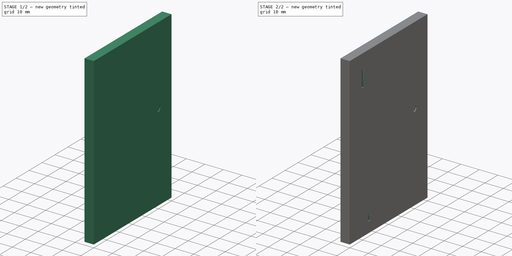
[diagram: build sequence overview — one tinted view per stage of 2, left to right]
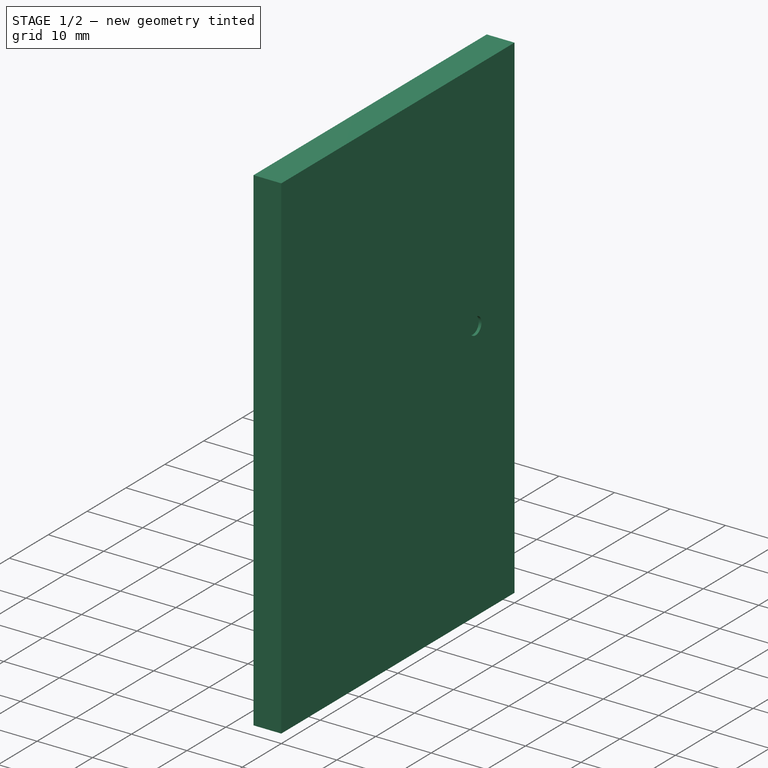
[diagram: stage 1 of 2 — iso view after this stage's code; geometry added in this stage tinted green]
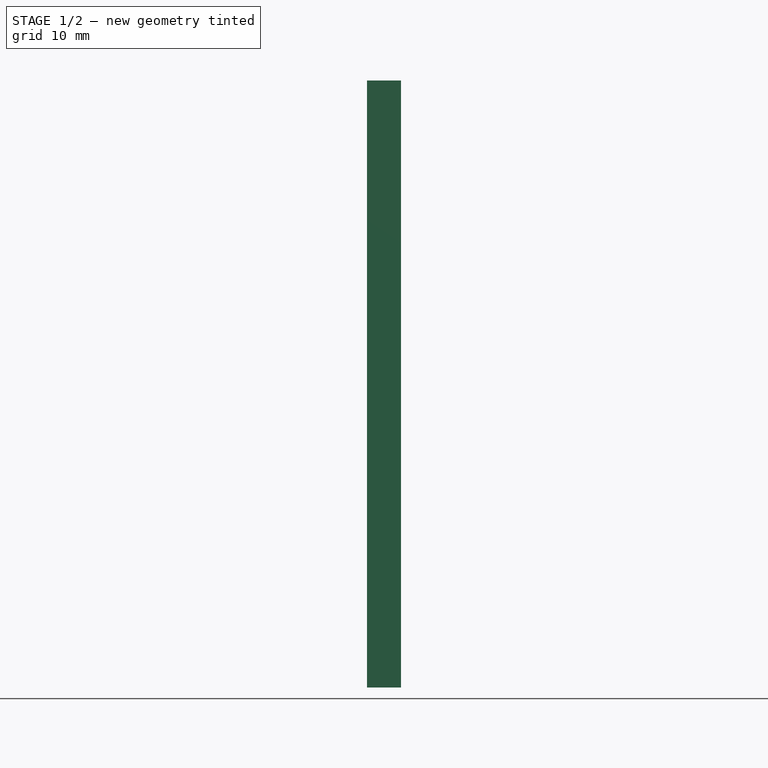
[diagram: stage 1 of 2 — front view after this stage's code; geometry added in this stage tinted green]
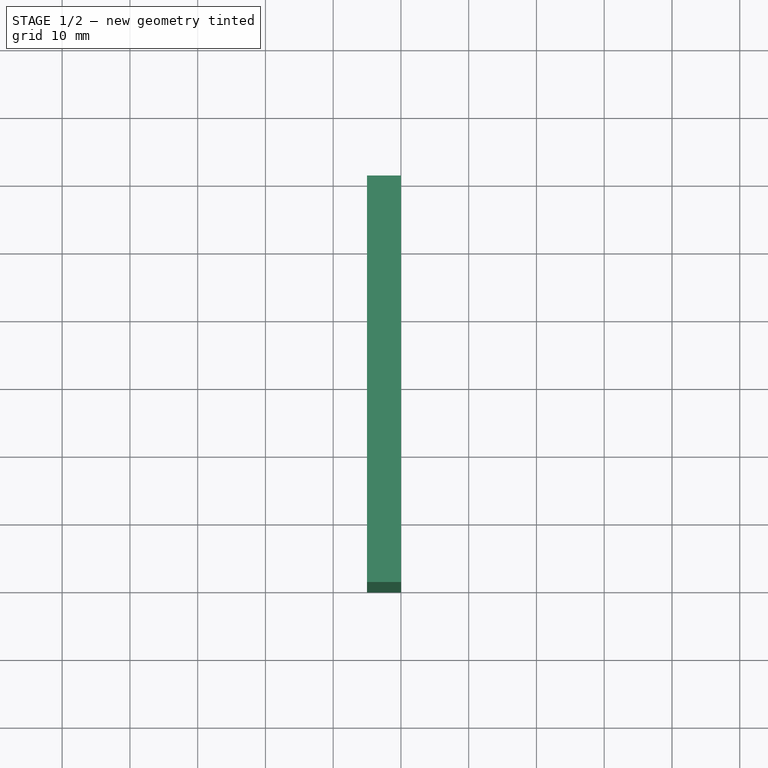
[diagram: stage 1 of 2 — top view after this stage's code; geometry added in this stage tinted green]
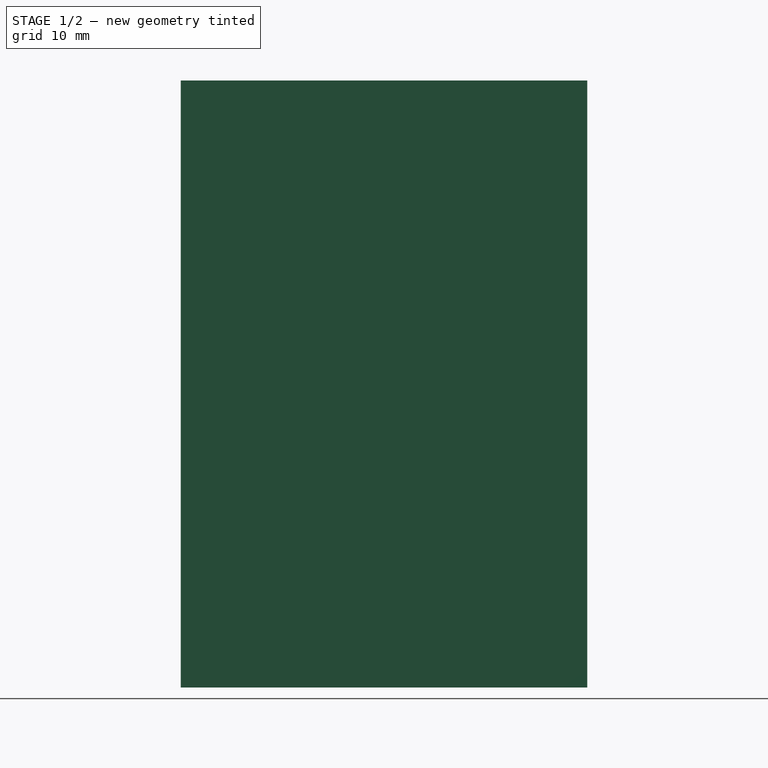
[diagram: stage 1 of 2 — right view after this stage's code; geometry added in this stage tinted green]
FCSTD DOCUMENT  (FreeCAD 0.20R29177 (Git))
Label: mount_plate
License: All rights reserved
LicenseURL: http://en.wikipedia.org/wiki/All_rights_reserved
objects: Sketcher::SketchObject×4, PartDesign::Pocket×3, Spreadsheet::Sheet×1, PartDesign::Pad×1, PartDesign::Body×1
note: 13 computed .brp shape members not serialized (recipe doc carries the construction recipe); baked Part::Feature solids carry a one-line shape summary decoded from their .brp

FEATURE [Spreadsheet::Sheet] Spreadsheet
  cells = A2=Design Parameters; A3=RefLength; B3(RefLength)==1mm; A4=SmallArmArcRadius; B4(SmallArmArcRadius)==30 * RefLength; A5=LargeArmArcRadius; B5(LargeArmArcRadius)==35 * RefLength; A6=WidthMargin; B6(WidthMargin)==0.5 * SmallArmArcRadius; A7=HeightMargin; B7(HeightMargin)==3 * Mu1AdjustedLength; A8=Width; B8(Width)==SmallArmArcRadius + 2 * WidthMargin; A9=Height; B9(Height)==2 * SmallArmArcRadius + 2 * HeightMargin; A10=Thickness; B10(Thickness)==5 * RefLength; A12=ArmBasePadLength; B12(ArmBasePadLength)==0.5 * RefLength; A14=Mu1AxisToBallCenter; B14(Mu1AxisToBallCenter)==5.25 * RefLength; A15=Mu1Angle; B15(Mu1Angle)==20deg; A16=Mu1AdjustedLength; B16(Mu1AdjustedLength)==Mu1AxisToBallCenter * cos(Mu1Angle); A18=SlaArmTipOffsetX; B18(SlaArmTipOffsetX)==5 * RefLength; A19=SlaArmBaseOffsetX; B19(SlaArmBaseOffsetX)==0.5 * SmallArmArcRadius + SlaArmTipOffsetX; A20=SlaArmBaseOffsetY; B20(SlaArmBaseOffsetY)==0.5 * Height + 0.5 * Mu1AdjustedLength; A21=SlaBaseDiameter; B21(SlaBaseDiameter)==3 * RefLength; A22=SlaBasePocketMargin; B22(SlaBasePocketMargin)==0.02 * RefLength; A23=SlaBasePocketDiameter; B23(SlaBasePocketDiameter)==SlaBaseDiameter + 2 * SlaBasePocketMargin; A24=SlaBasePocketDepth; B24(SlaBasePocketDepth)==ArmBasePadLength; A26=ScuArmTipOffsetX; B26(ScuArmTipOffsetX)==5 * RefLength; A27=ScuArmBaseOffsetX; B27(ScuArmBaseOffsetX)==0.5 * SmallArmArcRadius + ScuArmTipOffsetX; A28=ScuArmBaseOffsetY; B28(ScuArmBaseOffsetY)==0.5 * Height + SmallArmArcRadius + 0.5 * Mu1AdjustedLength; A29=ScuBaseHeight; B29(ScuBaseHeight)==1.5 * RefLength; A30=ScuBaseWidth; B30(ScuBaseWidth)==3 * RefLength; A31=ScuBaseWidthMargin; B31(ScuBaseWidthMargin)==0.02 * RefLength; A32=ScuBasePocketWidth; B32(ScuBasePocketWidth)==ScuBaseHeight + 2 * ScuBaseWidthMargin; A33=ScuBasePocketLength; B33(ScuBasePocketLength)==3 * ScuBaseWidth; A34=ScuBasePocketDepth; B34(ScuBasePocketDepth)==ArmBasePadLength; A36=PwpArmBaseOffsetX; B36(PwpArmBaseOffsetX)==0.5 * SmallArmArcRadius; A37=PwpArmBaseOffsetY; B37(PwpArmBaseOffsetY)==0.5 * Height - LargeArmArcRadius - 0.5 * Mu1AdjustedLength; A38=PwpBaseHeight; B38(PwpBaseHeight)==1.5 * RefLength; A39=PwpBaseWidth; B39(PwpBaseWidth)==3 * RefLength; A40=PwpBaseMargin; B40(PwpBaseMargin)==0.02 * RefLength; A41=PwpBaseCornerRadius; B41(PwpBaseCornerRadius)==0.25 * RefLength; A42=PwpBasePocketWidth; B42(PwpBasePocketWidth)==PwpBaseHeight + 2 * PwpBaseMargin; A43=PwpBasePocketLength; B43(PwpBasePocketLength)==PwpBaseWidth; A44=PwpBasePocketCornerRadius; B44(PwpBasePocketCornerRadius)==PwpBaseCornerRadius + PwpBaseMargin; A45=PwpBasePocketDepth; B45(PwpBasePocketDepth)==ArmBasePadLength
FEATURE [Sketcher::SketchObject] Sketch  label="PlateSketch"
  FullyConstrained = true
  MapMode = 5
  Placement = pos=(0,0,0) rot=(0.57735,0.57735,0.57735;2.0944rad)
  Support = -> [YZ_Plane]
  expr: Constraints[12] = Spreadsheet.Width
  expr: Constraints[13] = Spreadsheet.Height
  sketch-geometry (5):
    g0: LineSegment StartX=0 StartY=0 StartZ=0 EndX=-30 EndY=0 EndZ=0
    g1: LineSegment StartX=-30 StartY=0 StartZ=0 EndX=-30 EndY=89.6003 EndZ=0
    g2: LineSegment StartX=-30 StartY=89.6003 StartZ=0 EndX=30 EndY=89.6003 EndZ=0
    g3: LineSegment StartX=30 StartY=89.6003 StartZ=0 EndX=30 EndY=0 EndZ=0
    g4: LineSegment StartX=30 StartY=0 StartZ=0 EndX=0 EndY=0 EndZ=0
  constraints (14):
    c: Horizontal(g0)
    c: Coincident(g0,g1)
    c: Vertical(g1)
    c: Coincident(g1,g2)
    c: Horizontal(g2)
    c: Coincident(g2,g3)
    c: Vertical(g3)
    c: Coincident(g3,g4)
    c: Horizontal(g4)
    c: Coincident(g0,g4)
    c: Equal(g0,g4)
    c: Coincident(g0,g-1)
    c: DistanceX(g2,g2) = 60
    c: DistanceY(g3,g3) = 89.6003
FEATURE [PartDesign::Pad] Pad  label="PlatePad"
  Direction = (1,-2e-16,3e-16)
  Length = 5
  Length2 = 10
  Placement = pos=(0,0,0) rot=(0.57735,0.57735,0.57735;2.0944rad)
  Profile = -> Sketch
  ReferenceAxis = -> Sketch [N_Axis]
  Reversed = true
  Type = 0
  expr: Length = Spreadsheet.Thickness
FEATURE [Sketcher::SketchObject] Sketch001  label="SlaBasePocketSketch"
  FullyConstrained = true
  MapMode = 5
  Placement = pos=(0,0,0) rot=(0.57735,0.57735,0.57735;2.0944rad)
  Support = -> [YZ_Plane]
  expr: Constraints[2] = Spreadsheet.SlaArmBaseOffsetY
  expr: Constraints[5] = Spreadsheet.SlaArmBaseOffsetX
  expr: Constraints[7] = Spreadsheet.SlaBasePocketDiameter
  sketch-geometry (3):
    g0: LineSegment StartX=0 StartY=0 StartZ=0 EndX=0 EndY=47.2669 EndZ=0
    g1: LineSegment StartX=0 StartY=47.2669 StartZ=0 EndX=20 EndY=47.2669 EndZ=0
    g2: Circle CenterX=20 CenterY=47.2669 CenterZ=0 NormalX=0 NormalY=0 NormalZ=1 AngleXU=0 Radius=1.52
  constraints (8):
    c: Vertical(g0)
    c: Coincident(g0,g-1)
    c: DistanceY(g0,g0) = 47.2669
    c: Horizontal(g1)
    c: Coincident(g1,g0)
    c: DistanceX(g1,g1) = 20
    c: Coincident(g2,g1)
    c: Diameter(g2) = 3.04
FEATURE [PartDesign::Pocket] Pocket  label="SlaBasePocket"
  BaseFeature = -> Pad
  Direction = (-1,2e-16,-3e-16)
  Length = 0.5
  Length2 = 5
  Placement = pos=(0,0,0) rot=(0.57735,0.57735,0.57735;2.0944rad)
  Profile = -> Sketch001
  ReferenceAxis = -> Sketch001 [N_Axis]
  Type = 0
  expr: Length = Spreadsheet.SlaBasePocketDepth
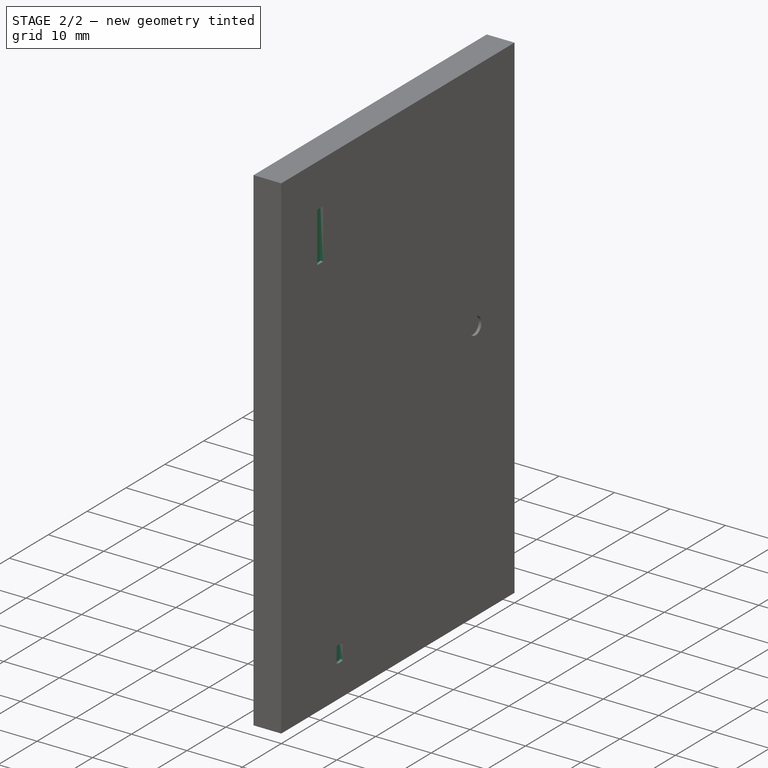
[diagram: stage 2 of 2 — iso view after this stage's code; geometry added in this stage tinted green]
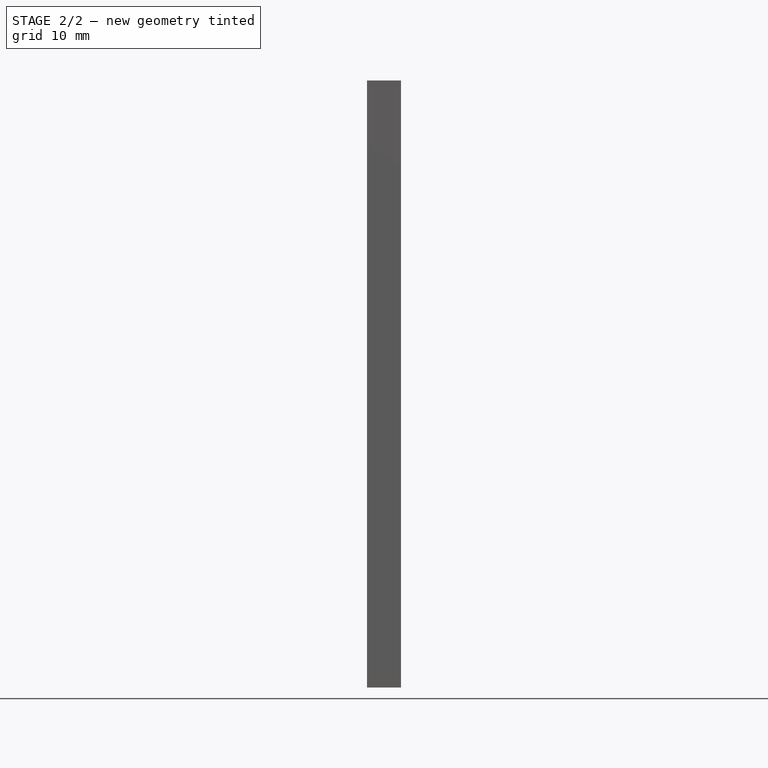
[diagram: stage 2 of 2 — front view after this stage's code; geometry added in this stage tinted green]
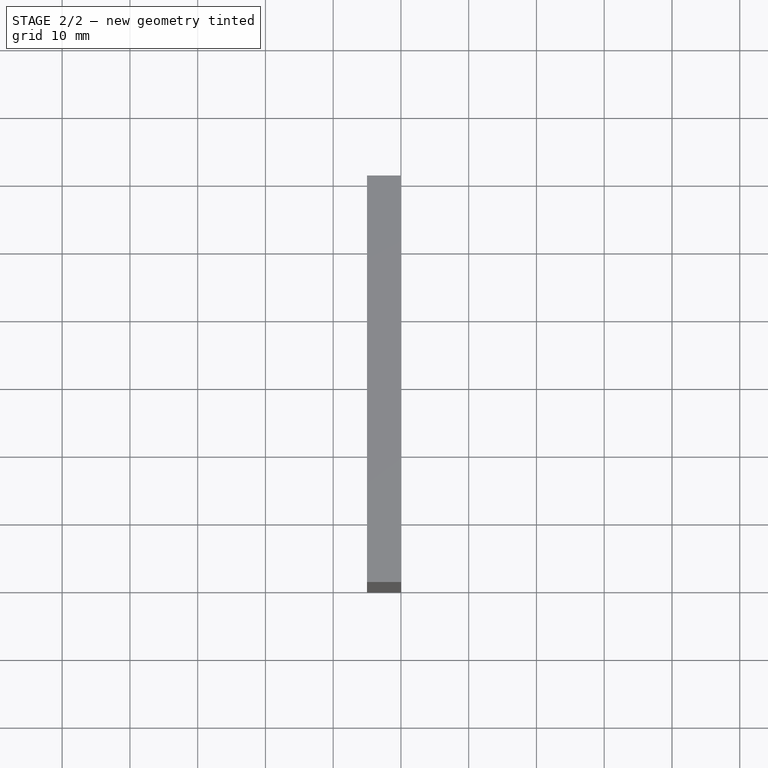
[diagram: stage 2 of 2 — top view after this stage's code; geometry added in this stage tinted green]
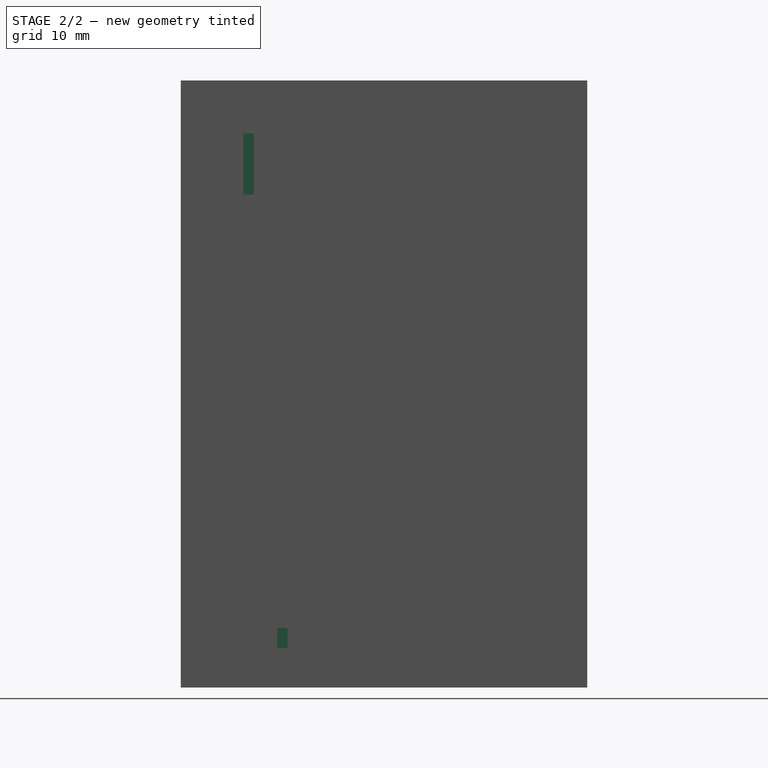
[diagram: stage 2 of 2 — right view after this stage's code; geometry added in this stage tinted green]
FEATURE [Sketcher::SketchObject] Sketch002  label="ScuBasePocketSketch"
  FullyConstrained = true
  MapMode = 5
  Placement = pos=(0,0,0) rot=(0.57735,0.57735,0.57735;2.0944rad)
  Support = -> [YZ_Plane]
  expr: Constraints[15] = Spreadsheet.ScuBasePocketLength
  expr: Constraints[16] = Spreadsheet.ScuBasePocketWidth
  expr: Constraints[4] = Spreadsheet.ScuArmBaseOffsetY
  expr: Constraints[5] = Spreadsheet.ScuArmBaseOffsetX
  sketch-geometry (6):
    g0: LineSegment StartX=0 StartY=0 StartZ=0 EndX=0 EndY=77.2669 EndZ=0
    g1: LineSegment StartX=-20 StartY=77.2669 StartZ=0 EndX=0 EndY=77.2669 EndZ=0
    g2: LineSegment StartX=-20.77 StartY=81.7669 StartZ=0 EndX=-19.23 EndY=81.7669 EndZ=0
    g3: LineSegment StartX=-19.23 StartY=81.7669 StartZ=0 EndX=-19.23 EndY=72.7669 EndZ=0
    g4: LineSegment StartX=-19.23 StartY=72.7669 StartZ=0 EndX=-20.77 EndY=72.7669 EndZ=0
    g5: LineSegment StartX=-20.77 StartY=72.7669 StartZ=0 EndX=-20.77 EndY=81.7669 EndZ=0
  constraints (17):
    c: Vertical(g0)
    c: Coincident(g-1,g0)
    c: Horizontal(g1)
    c: Coincident(g1,g0)
    c: DistanceY(g0,g0) = 77.2669
    c: DistanceX(g1,g1) = 20
    c: Coincident(g2,g3)
    c: Coincident(g3,g4)
    c: Coincident(g4,g5)
    c: Coincident(g5,g2)
    c: Horizontal(g2)
    c: Horizontal(g4)
    c: Vertical(g3)
    c: Vertical(g5)
    c: Symmetric(g2,g3,g1)
    c: DistanceY(g5,g5) = 9
    c: DistanceX(g2,g2) = 1.54
FEATURE [PartDesign::Pocket] Pocket001  label="ScuBasePocket"
  BaseFeature = -> Pocket
  Direction = (-1,2e-16,-3e-16)
  Length = 0.5
  Length2 = 5
  Placement = pos=(0,0,0) rot=(0.57735,0.57735,0.57735;2.0944rad)
  Profile = -> Sketch002
  ReferenceAxis = -> Sketch002 [N_Axis]
  Type = 0
  expr: Length = Spreadsheet.ScuBasePocketDepth
FEATURE [Sketcher::SketchObject] Sketch003  label="PwpBasePocketSketch"
  FullyConstrained = true
  MapMode = 5
  Placement = pos=(0,0,0) rot=(0.57735,0.57735,0.57735;2.0944rad)
  Support = -> [YZ_Plane]
  expr: Constraints[26] = Spreadsheet.PwpBasePocketCornerRadius
  expr: Constraints[27] = Spreadsheet.PwpBasePocketLength
  expr: Constraints[28] = Spreadsheet.PwpBasePocketWidth
  expr: Constraints[4] = Spreadsheet.PwpArmBaseOffsetY
  expr: Constraints[5] = Spreadsheet.PwpArmBaseOffsetX
  sketch-geometry (12):
    g0: LineSegment StartX=0 StartY=0 StartZ=0 EndX=0 EndY=7.33347 EndZ=0
    g1: LineSegment StartX=0 StartY=7.33347 StartZ=0 EndX=-15 EndY=7.33347 EndZ=0
    g2: ArcOfCircle CenterX=-15.5 CenterY=8.56347 CenterZ=0 NormalX=0 NormalY=0 NormalZ=1 AngleXU=0 Radius=0.27 StartAngle=1.5708 EndAngle=3.14159
    g3: LineSegment StartX=-15.5 StartY=8.83347 StartZ=0 EndX=-14.5 EndY=8.83347 EndZ=0
    g4: ArcOfCircle CenterX=-14.5 CenterY=8.56347 CenterZ=0 NormalX=0 NormalY=0 NormalZ=1 AngleXU=0 Radius=0.27 StartAngle=9e-16 EndAngle=1.5708
    g5: LineSegment StartX=-14.23 StartY=8.56347 StartZ=0 EndX=-14.23 EndY=6.10347 EndZ=0
    g6: ArcOfCircle CenterX=-14.5 CenterY=6.10347 CenterZ=0 NormalX=0 NormalY=0 NormalZ=1 AngleXU=0 Radius=0.27 StartAngle=4.71239 EndAngle=6.28319
    g7: LineSegment StartX=-14.5 StartY=5.83347 StartZ=0 EndX=-15.5 EndY=5.83347 EndZ=0
    g8: ArcOfCircle CenterX=-15.5 CenterY=6.10347 CenterZ=0 NormalX=0 NormalY=0 NormalZ=1 AngleXU=0 Radius=0.27 StartAngle=3.14159 EndAngle=4.71239
    g9: LineSegment StartX=-15.77 StartY=6.10347 StartZ=0 EndX=-15.77 EndY=8.56347 EndZ=0
    g10: GeomPoint X=-15.77 Y=8.83347 Z=0
    g11: GeomPoint X=-14.23 Y=5.83347 Z=0
  constraints (29):
    c: Vertical(g0)
    c: Coincident(g0,g1)
    c: Horizontal(g1)
    c: Coincident(g0,g-1)
    c: DistanceY(g0,g0) = 7.33347
    c: DistanceX(g1,g1) = 15
    c: Tangent(g2,g3) = 1.5708
    c: Tangent(g3,g4) = 1.5708
    c: Tangent(g4,g5) = 1.5708
    c: Tangent(g5,g6) = 1.5708
    c: Tangent(g6,g7) = 1.5708
    c: Tangent(g7,g8) = 1.5708
    c: Tangent(g8,g9) = 1.5708
    c: Tangent(g9,g2) = 1.5708
    c: Horizontal(g3)
    c: Horizontal(g7)
    c: Vertical(g5)
    c: Vertical(g9)
    c: Equal(g2,g4)
    c: Equal(g4,g6)
    c: Equal(g6,g8)
    c: PointOnObject(g10,g3)
    c: PointOnObject(g10,g9)
    c: PointOnObject(g11,g5)
    c: PointOnObject(g11,g7)
    c: Symmetric(g2,g6,g1)
    c: Radius(g2) = 0.27
    c: DistanceY(g7,g2) = 3
    c: DistanceX(g8,g5) = 1.54
FEATURE [PartDesign::Pocket] Pocket002  label="PwpBasePocket"
  BaseFeature = -> Pocket001
  Direction = (-1,2e-16,-3e-16)
  Length = 0.5
  Length2 = 5
  Placement = pos=(0,0,0) rot=(0.57735,0.57735,0.57735;2.0944rad)
  Profile = -> Sketch003
  ReferenceAxis = -> Sketch003 [N_Axis]
  Type = 0
  expr: Length = Spreadsheet.PwpBasePocketDepth
FEATURE [PartDesign::Body] Body
  Group = -> [Sketch,Pad,Sketch001,Pocket,Sketch002,Pocket001,Sketch003,Pocket002]
  Origin = -> Origin
  Tip = -> Pocket002
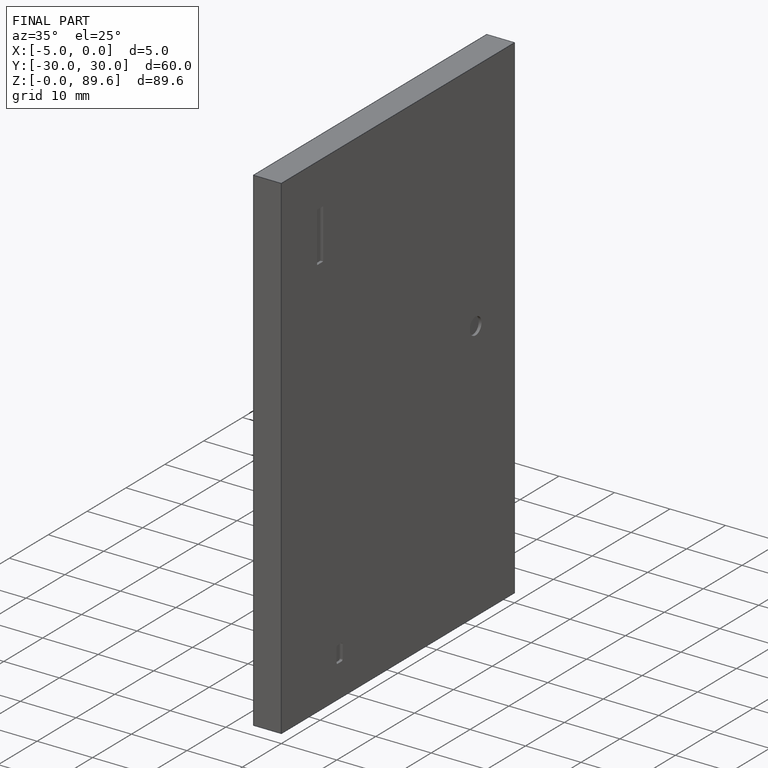
[diagram: finished part — iso view with bounding-box wireframe]
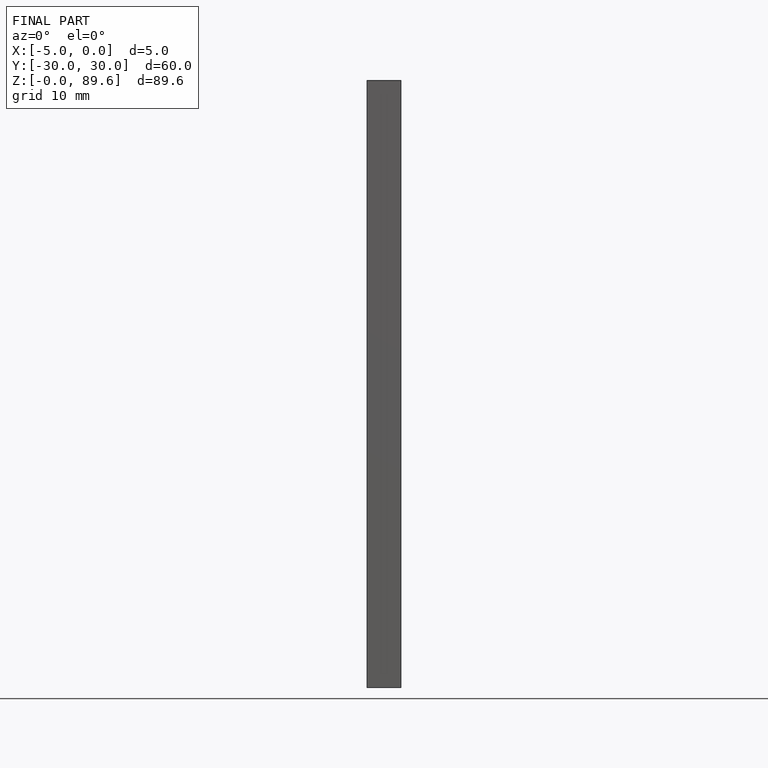
[diagram: finished part — front view with bounding-box wireframe]
